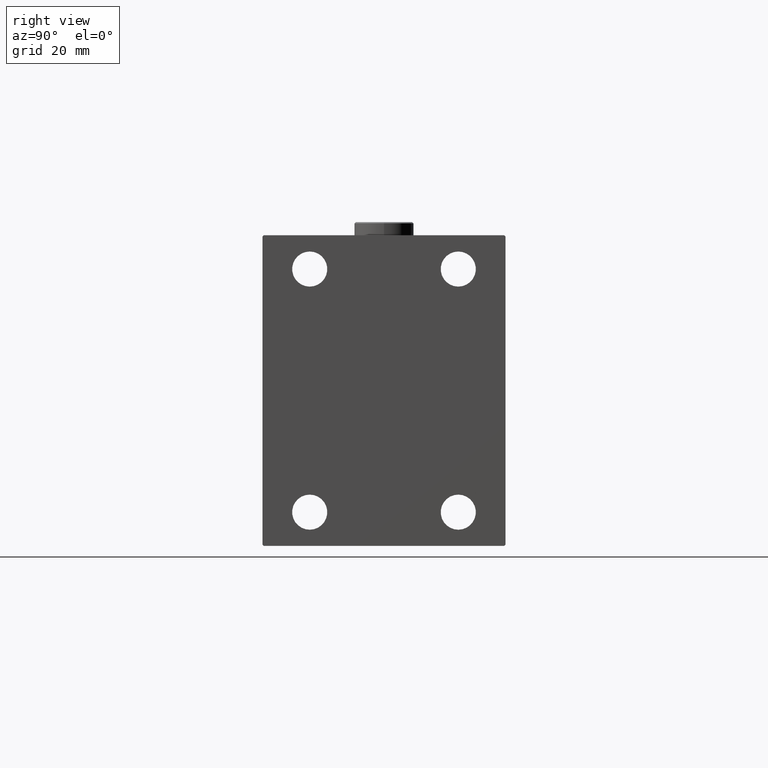
[diagram: clean part render]
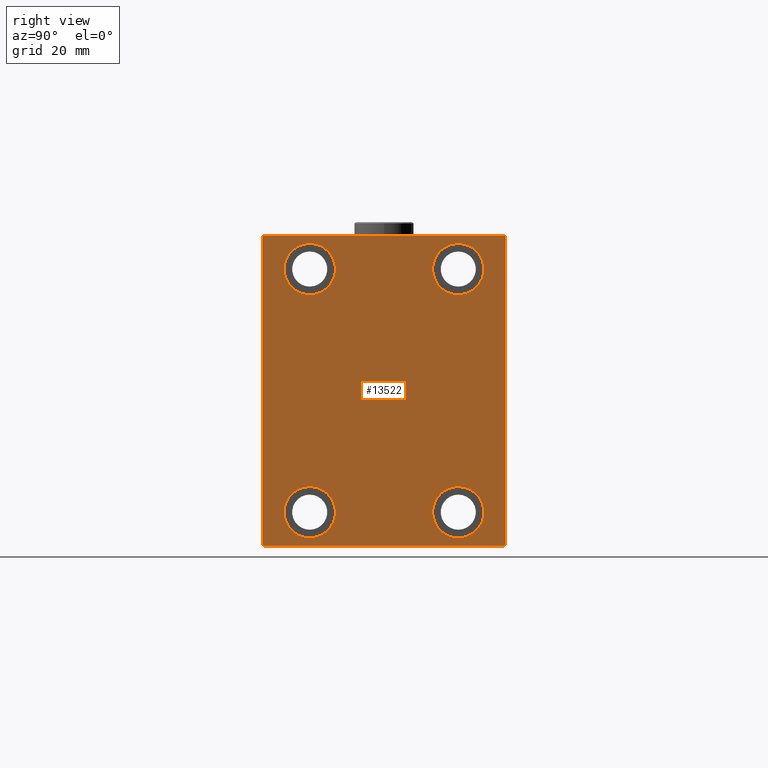
[diagram: same view with one face highlighted and labeled with its STEP entity id]
A machine part, right view. The second image highlights one B-rep face of the part: STEP entity #13522.
In plain terms, the highlighted planar face has unit normal (1, 0, 0).
Its self-contained STEP definition (entity closure, byte-faithful):
#8 = AXIS2_PLACEMENT_3D ( 'NONE', #7141, #7385, #22236 ) ;
#90 = EDGE_CURVE ( 'NONE', #31253, #35466, #27708, .T. ) ;
#286 = LINE ( 'NONE', #9240, #7594 ) ;
#453 = EDGE_CURVE ( 'NONE', #42371, #31253, #286, .T. ) ;
#1902 = CARTESIAN_POINT ( 'NONE',  ( 128.0000000000000000, -51.00000000000001421, -51.00000000000001421 ) ) ;
#2010 = CIRCLE ( 'NONE', #37024, 9.500000000000001776 ) ;
#2394 = EDGE_CURVE ( 'NONE', #23509, #20984, #6866, .T. ) ;
#2641 = EDGE_CURVE ( 'NONE', #44729, #18069, #41099, .T. ) ;
#2754 = EDGE_LOOP ( 'NONE', ( #8313, #13146, #15124, #10368, #15701, #4190, #27989, #13205 ) ) ;
#2920 = CARTESIAN_POINT ( 'NONE',  ( 128.0000000000000000, -27.49999999999998934, 45.00000000000000711 ) ) ;
#3014 = VERTEX_POINT ( 'NONE', #21378 ) ;
#3375 = VERTEX_POINT ( 'NONE', #30019 ) ;
#3660 = DIRECTION ( 'NONE',  ( -1.000000000000000000, -0.000000000000000000, -0.000000000000000000 ) ) ;
#4190 = ORIENTED_EDGE ( 'NONE', *, *, #36507, .T. ) ;
#4207 = CARTESIAN_POINT ( 'NONE',  ( 128.0000000000000000, 45.00000000000001421, -57.50000000000000711 ) ) ;
#4250 = EDGE_CURVE ( 'NONE', #42269, #42371, #43386, .T. ) ;
#4660 = CARTESIAN_POINT ( 'NONE',  ( 128.0000000000000000, 27.50000000000001066, 45.00000000000000711 ) ) ;
#5599 = DIRECTION ( 'NONE',  ( 0.000000000000000000, 0.000000000000000000, -1.000000000000000000 ) ) ;
#6062 = EDGE_CURVE ( 'NONE', #35466, #15593, #23969, .T. ) ;
#6219 = FACE_BOUND ( 'NONE', #24811, .T. ) ;
#6866 = CIRCLE ( 'NONE', #13068, 9.500000000000001776 ) ;
#6907 = CARTESIAN_POINT ( 'NONE',  ( 128.0000000000000000, -27.49999999999998934, 35.50000000000000711 ) ) ;
#7141 = CARTESIAN_POINT ( 'NONE',  ( 128.0000000000000000, 27.49999999999998934, -44.99999999999998579 ) ) ;
#7385 = DIRECTION ( 'NONE',  ( -1.000000000000000000, -0.000000000000000000, -0.000000000000000000 ) ) ;
#7481 = CIRCLE ( 'NONE', #28460, 9.500000000000001776 ) ;
#7594 = VECTOR ( 'NONE', #5599, 1000.000000000000000 ) ;
#7661 = DIRECTION ( 'NONE',  ( 0.000000000000000000, 0.000000000000000000, 1.000000000000000000 ) ) ;
#8027 = CIRCLE ( 'NONE', #24349, 9.500000000000001776 ) ;
#8101 = CIRCLE ( 'NONE', #32970, 9.500000000000001776 ) ;
#8312 = DIRECTION ( 'NONE',  ( 0.000000000000000000, 0.000000000000000000, 1.000000000000000000 ) ) ;
#8313 = ORIENTED_EDGE ( 'NONE', *, *, #35387, .T. ) ;
#8672 = DIRECTION ( 'NONE',  ( 0.000000000000000000, 0.000000000000000000, 1.000000000000000000 ) ) ;
#8687 = EDGE_CURVE ( 'NONE', #37963, #3014, #15863, .T. ) ;
#9240 = CARTESIAN_POINT ( 'NONE',  ( 128.0000000000000000, -45.00000000000000000, 57.49999999999999289 ) ) ;
#9505 = EDGE_CURVE ( 'NONE', #12465, #3375, #21763, .T. ) ;
#9931 = CARTESIAN_POINT ( 'NONE',  ( 128.0000000000000000, -45.00000000000000000, 56.99999999999999289 ) ) ;
#10318 = AXIS2_PLACEMENT_3D ( 'NONE', #41797, #38147, #8672 ) ;
#10368 = ORIENTED_EDGE ( 'NONE', *, *, #90, .T. ) ;
#10504 = CARTESIAN_POINT ( 'NONE',  ( 128.0000000000000000, -45.00000000000000000, -57.00000000000003553 ) ) ;
#11064 = DIRECTION ( 'NONE',  ( -1.000000000000000000, -0.000000000000000000, -0.000000000000000000 ) ) ;
#11344 = VECTOR ( 'NONE', #35007, 1000.000000000000114 ) ;
#11960 = ORIENTED_EDGE ( 'NONE', *, *, #22400, .T. ) ;
#12465 = VERTEX_POINT ( 'NONE', #16861 ) ;
#13068 = AXIS2_PLACEMENT_3D ( 'NONE', #4660, #33888, #8312 ) ;
#13146 = ORIENTED_EDGE ( 'NONE', *, *, #4250, .T. ) ;
#13178 = CARTESIAN_POINT ( 'NONE',  ( 128.0000000000000000, 45.00000000000000000, 57.50000000000000711 ) ) ;
#13205 = ORIENTED_EDGE ( 'NONE', *, *, #27075, .T. ) ;
#13522 = ADVANCED_FACE ( 'NONE', ( #27398, #15974, #6219, #32490, #43234 ), #27881, .T. ) ;
#13536 = CARTESIAN_POINT ( 'NONE',  ( 128.0000000000000000, -27.50000000000000000, -35.49999999999998579 ) ) ;
#13764 = DIRECTION ( 'NONE',  ( 1.000000000000000000, 0.000000000000000000, 0.000000000000000000 ) ) ;
#13890 = LINE ( 'NONE', #47501, #18003 ) ;
#13919 = LINE ( 'NONE', #46793, #41610 ) ;
#14205 = CARTESIAN_POINT ( 'NONE',  ( 128.0000000000000000, 27.50000000000001066, 45.00000000000000711 ) ) ;
#15124 = ORIENTED_EDGE ( 'NONE', *, *, #453, .T. ) ;
#15593 = VERTEX_POINT ( 'NONE', #36553 ) ;
#15701 = ORIENTED_EDGE ( 'NONE', *, *, #6062, .T. ) ;
#15863 = LINE ( 'NONE', #4207, #24820 ) ;
#15974 = FACE_BOUND ( 'NONE', #28027, .T. ) ;
#16315 = ORIENTED_EDGE ( 'NONE', *, *, #2641, .T. ) ;
#16861 = CARTESIAN_POINT ( 'NONE',  ( 128.0000000000000000, 27.49999999999998934, -54.49999999999998579 ) ) ;
#17955 = CARTESIAN_POINT ( 'NONE',  ( 128.0000000000000000, -44.49999999999997158, 57.49999999999999289 ) ) ;
#18003 = VECTOR ( 'NONE', #39955, 1000.000000000000000 ) ;
#18069 = VERTEX_POINT ( 'NONE', #6907 ) ;
#18559 = AXIS2_PLACEMENT_3D ( 'NONE', #2920, #47979, #28732 ) ;
#18567 = DIRECTION ( 'NONE',  ( 0.000000000000000000, 0.000000000000000000, 1.000000000000000000 ) ) ;
#20246 = DIRECTION ( 'NONE',  ( 0.000000000000000000, -1.000000000000000000, -1.541976423090495387E-16 ) ) ;
#20768 = EDGE_LOOP ( 'NONE', ( #47887, #33155 ) ) ;
#20984 = VERTEX_POINT ( 'NONE', #26230 ) ;
#21114 = EDGE_CURVE ( 'NONE', #3375, #12465, #36009, .T. ) ;
#21378 = CARTESIAN_POINT ( 'NONE',  ( 128.0000000000000000, 45.00000000000000000, 57.00000000000000711 ) ) ;
#21422 = CARTESIAN_POINT ( 'NONE',  ( 128.0000000000000000, 27.50000000000001066, 35.50000000000000711 ) ) ;
#21763 = CIRCLE ( 'NONE', #8, 9.500000000000001776 ) ;
#22236 = DIRECTION ( 'NONE',  ( 0.000000000000000000, 0.000000000000000000, 1.000000000000000000 ) ) ;
#22400 = EDGE_CURVE ( 'NONE', #20984, #23509, #8027, .T. ) ;
#23509 = VERTEX_POINT ( 'NONE', #21422 ) ;
#23553 = ORIENTED_EDGE ( 'NONE', *, *, #29177, .T. ) ;
#23657 = DIRECTION ( 'NONE',  ( 0.000000000000000000, -1.206764157201257045E-16, 1.000000000000000000 ) ) ;
#23658 = CARTESIAN_POINT ( 'NONE',  ( 128.0000000000000000, 45.00000000000001421, -57.00000000000000711 ) ) ;
#23969 = LINE ( 'NONE', #27378, #34856 ) ;
#24181 = AXIS2_PLACEMENT_3D ( 'NONE', #46882, #13764, #46396 ) ;
#24208 = DIRECTION ( 'NONE',  ( 0.000000000000000000, 1.000000000000000000, 0.000000000000000000 ) ) ;
#24349 = AXIS2_PLACEMENT_3D ( 'NONE', #14205, #25881, #18567 ) ;
#24388 = DIRECTION ( 'NONE',  ( 0.000000000000000000, -0.7071067811865474617, -0.7071067811865474617 ) ) ;
#24502 = ORIENTED_EDGE ( 'NONE', *, *, #25231, .T. ) ;
#24634 = DIRECTION ( 'NONE',  ( -0.000000000000000000, -0.7071067811865671127, 0.7071067811865279218 ) ) ;
#24811 = EDGE_LOOP ( 'NONE', ( #45948, #11960 ) ) ;
#24820 = VECTOR ( 'NONE', #23657, 1000.000000000000000 ) ;
#25231 = EDGE_CURVE ( 'NONE', #25402, #47527, #8101, .T. ) ;
#25402 = VERTEX_POINT ( 'NONE', #45516 ) ;
#25591 = VECTOR ( 'NONE', #24388, 1000.000000000000114 ) ;
#25881 = DIRECTION ( 'NONE',  ( -1.000000000000000000, -0.000000000000000000, -0.000000000000000000 ) ) ;
#26230 = CARTESIAN_POINT ( 'NONE',  ( 128.0000000000000000, 27.50000000000001066, 54.50000000000000711 ) ) ;
#26768 = CARTESIAN_POINT ( 'NONE',  ( 128.0000000000000000, -27.50000000000000000, -44.99999999999998579 ) ) ;
#26889 = CARTESIAN_POINT ( 'NONE',  ( 128.0000000000000000, 44.50000000000000000, 57.50000000000000711 ) ) ;
#27075 = EDGE_CURVE ( 'NONE', #3014, #45001, #13919, .T. ) ;
#27378 = CARTESIAN_POINT ( 'NONE',  ( 128.0000000000000000, -45.00000000000000000, -57.50000000000000711 ) ) ;
#27398 = FACE_BOUND ( 'NONE', #20768, .T. ) ;
#27708 = LINE ( 'NONE', #1902, #11344 ) ;
#27881 = PLANE ( 'NONE',  #24181 ) ;
#27989 = ORIENTED_EDGE ( 'NONE', *, *, #8687, .T. ) ;
#28027 = EDGE_LOOP ( 'NONE', ( #23553, #16315 ) ) ;
#28036 = CARTESIAN_POINT ( 'NONE',  ( 128.0000000000000000, -51.00000000000000000, 51.00000000000000000 ) ) ;
#28064 = DIRECTION ( 'NONE',  ( 0.000000000000000000, 0.000000000000000000, 1.000000000000000000 ) ) ;
#28460 = AXIS2_PLACEMENT_3D ( 'NONE', #29819, #11064, #7661 ) ;
#28732 = DIRECTION ( 'NONE',  ( 0.000000000000000000, 0.000000000000000000, 1.000000000000000000 ) ) ;
#28793 = DIRECTION ( 'NONE',  ( -1.000000000000000000, -0.000000000000000000, -0.000000000000000000 ) ) ;
#28877 = EDGE_CURVE ( 'NONE', #47527, #25402, #7481, .T. ) ;
#29177 = EDGE_CURVE ( 'NONE', #18069, #44729, #2010, .T. ) ;
#29819 = CARTESIAN_POINT ( 'NONE',  ( 128.0000000000000000, -27.50000000000000000, -44.99999999999998579 ) ) ;
#30019 = CARTESIAN_POINT ( 'NONE',  ( 128.0000000000000000, 27.49999999999998934, -35.49999999999998579 ) ) ;
#30838 = EDGE_LOOP ( 'NONE', ( #24502, #32528 ) ) ;
#31253 = VERTEX_POINT ( 'NONE', #10504 ) ;
#32490 = FACE_BOUND ( 'NONE', #30838, .T. ) ;
#32528 = ORIENTED_EDGE ( 'NONE', *, *, #28877, .T. ) ;
#32970 = AXIS2_PLACEMENT_3D ( 'NONE', #26768, #3660, #37260 ) ;
#33155 = ORIENTED_EDGE ( 'NONE', *, *, #21114, .T. ) ;
#33888 = DIRECTION ( 'NONE',  ( -1.000000000000000000, -0.000000000000000000, -0.000000000000000000 ) ) ;
#34855 = CARTESIAN_POINT ( 'NONE',  ( 128.0000000000000000, -44.50000000000002842, -57.50000000000000711 ) ) ;
#34856 = VECTOR ( 'NONE', #24208, 1000.000000000000000 ) ;
#35007 = DIRECTION ( 'NONE',  ( -0.000000000000000000, 0.7071067811865474617, -0.7071067811865474617 ) ) ;
#35344 = LINE ( 'NONE', #13178, #40545 ) ;
#35387 = EDGE_CURVE ( 'NONE', #45001, #42269, #35344, .T. ) ;
#35466 = VERTEX_POINT ( 'NONE', #34855 ) ;
#36009 = CIRCLE ( 'NONE', #10318, 9.500000000000001776 ) ;
#36507 = EDGE_CURVE ( 'NONE', #15593, #37963, #13890, .T. ) ;
#36553 = CARTESIAN_POINT ( 'NONE',  ( 128.0000000000000000, 44.50000000000001421, -57.50000000000000711 ) ) ;
#36960 = CARTESIAN_POINT ( 'NONE',  ( 128.0000000000000000, -27.49999999999998934, 54.50000000000000711 ) ) ;
#37024 = AXIS2_PLACEMENT_3D ( 'NONE', #42683, #28793, #28064 ) ;
#37260 = DIRECTION ( 'NONE',  ( 0.000000000000000000, 0.000000000000000000, 1.000000000000000000 ) ) ;
#37963 = VERTEX_POINT ( 'NONE', #23658 ) ;
#38147 = DIRECTION ( 'NONE',  ( -1.000000000000000000, -0.000000000000000000, -0.000000000000000000 ) ) ;
#39955 = DIRECTION ( 'NONE',  ( -0.000000000000000000, 0.7071067811865279218, 0.7071067811865671127 ) ) ;
#40545 = VECTOR ( 'NONE', #20246, 1000.000000000000000 ) ;
#41099 = CIRCLE ( 'NONE', #18559, 9.500000000000001776 ) ;
#41610 = VECTOR ( 'NONE', #24634, 1000.000000000000000 ) ;
#41797 = CARTESIAN_POINT ( 'NONE',  ( 128.0000000000000000, 27.49999999999998934, -44.99999999999998579 ) ) ;
#42269 = VERTEX_POINT ( 'NONE', #17955 ) ;
#42371 = VERTEX_POINT ( 'NONE', #9931 ) ;
#42683 = CARTESIAN_POINT ( 'NONE',  ( 128.0000000000000000, -27.49999999999998934, 45.00000000000000711 ) ) ;
#43234 = FACE_OUTER_BOUND ( 'NONE', #2754, .T. ) ;
#43386 = LINE ( 'NONE', #28036, #25591 ) ;
#44729 = VERTEX_POINT ( 'NONE', #36960 ) ;
#45001 = VERTEX_POINT ( 'NONE', #26889 ) ;
#45516 = CARTESIAN_POINT ( 'NONE',  ( 128.0000000000000000, -27.50000000000000000, -54.49999999999998579 ) ) ;
#45948 = ORIENTED_EDGE ( 'NONE', *, *, #2394, .T. ) ;
#46396 = DIRECTION ( 'NONE',  ( 0.000000000000000000, 0.000000000000000000, -1.000000000000000000 ) ) ;
#46793 = CARTESIAN_POINT ( 'NONE',  ( 128.0000000000000000, 50.99999999999877076, 51.00000000000159162 ) ) ;
#46882 = CARTESIAN_POINT ( 'NONE',  ( 128.0000000000000000, 0.000000000000000000, 0.000000000000000000 ) ) ;
#47501 = CARTESIAN_POINT ( 'NONE',  ( 128.0000000000000000, 51.00000000000125056, -50.99999999999842970 ) ) ;
#47527 = VERTEX_POINT ( 'NONE', #13536 ) ;
#47887 = ORIENTED_EDGE ( 'NONE', *, *, #9505, .T. ) ;
#47979 = DIRECTION ( 'NONE',  ( -1.000000000000000000, -0.000000000000000000, -0.000000000000000000 ) ) ;